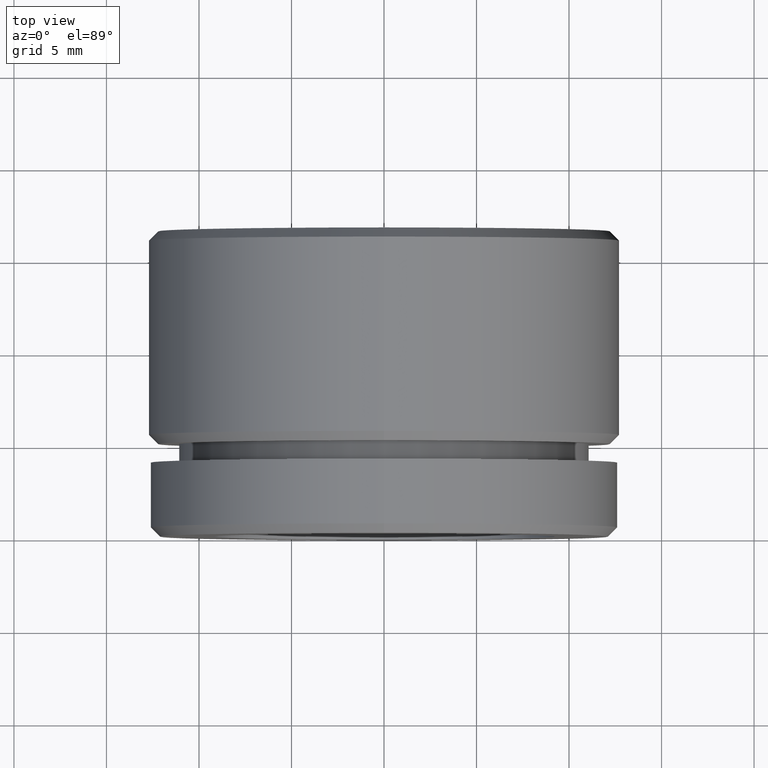
[diagram: clean part render]
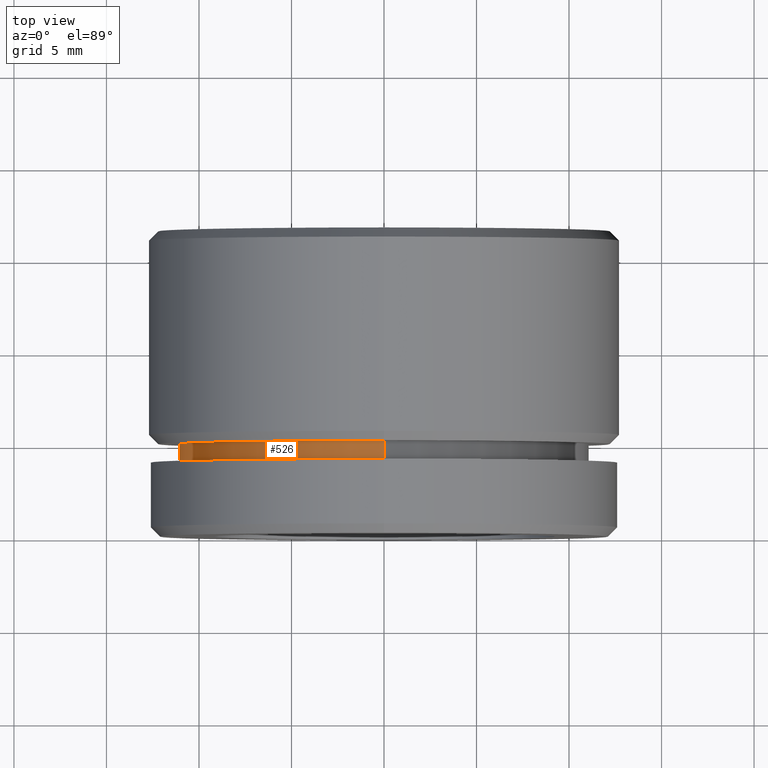
[diagram: same view with one face highlighted and labeled with its STEP entity id]
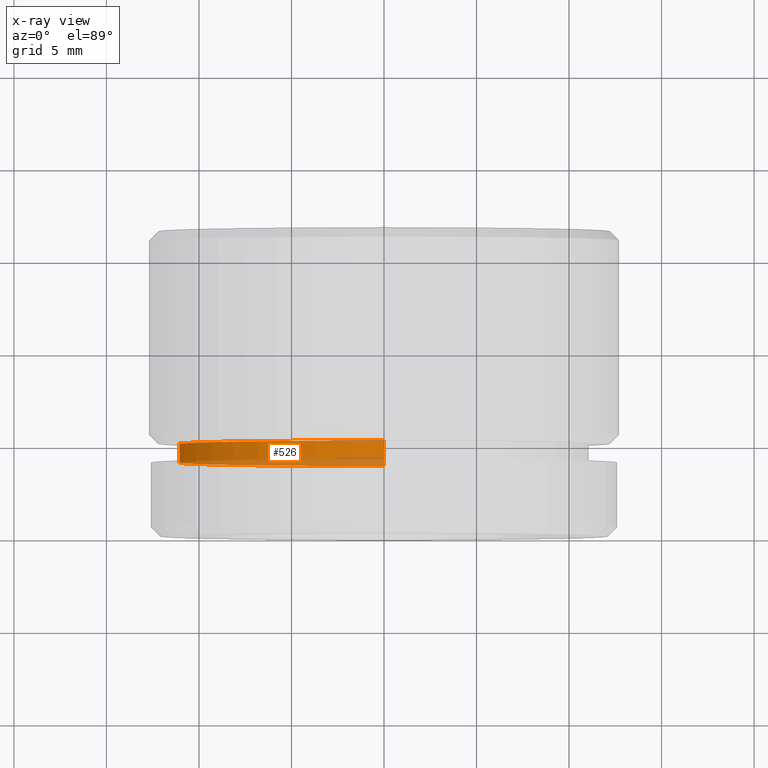
[diagram: x-ray of the same camera — body ghosted, the highlighted face saturated]
A machine part, top view. The second image highlights one B-rep face of the part: STEP entity #526.
The next image is the same camera in x-ray: the body ghosted, the highlighted face saturated — about 23% of this face is hidden behind the body in this view.
In plain terms, the highlighted cylindrical surface (partial cylindrical patch) has radius 11.1 mm, axis along (-0, -1, -0).
Its self-contained STEP definition (entity closure, byte-faithful):
#5 = VECTOR ( 'NONE', #164, 1000.000000000000000 ) ;
#58 = VERTEX_POINT ( 'NONE', #256 ) ;
#60 = VERTEX_POINT ( 'NONE', #504 ) ;
#68 = FACE_OUTER_BOUND ( 'NONE', #601, .T. ) ;
#78 = ORIENTED_EDGE ( 'NONE', *, *, #824, .T. ) ;
#138 = CARTESIAN_POINT ( 'NONE',  ( 0.0000000000000000000, 5.000000000000000000, -11.10000000000000000 ) ) ;
#140 = CARTESIAN_POINT ( 'NONE',  ( 1.359357947053562200E-015, 0.0000000000000000000, 11.10000000000000000 ) ) ;
#146 = LINE ( 'NONE', #140, #5 ) ;
#155 = CIRCLE ( 'NONE', #195, 11.10000000000000000 ) ;
#164 = DIRECTION ( 'NONE',  ( -0.0000000000000000000, -1.000000000000000000, -0.0000000000000000000 ) ) ;
#192 = DIRECTION ( 'NONE',  ( -0.0000000000000000000, -1.000000000000000000, -0.0000000000000000000 ) ) ;
#195 = AXIS2_PLACEMENT_3D ( 'NONE', #392, #192, #226 ) ;
#224 = CIRCLE ( 'NONE', #349, 11.10000000000000000 ) ;
#226 = DIRECTION ( 'NONE',  ( 0.0000000000000000000, 0.0000000000000000000, -1.000000000000000000 ) ) ;
#254 = DIRECTION ( 'NONE',  ( -0.0000000000000000000, -1.000000000000000000, -0.0000000000000000000 ) ) ;
#256 = CARTESIAN_POINT ( 'NONE',  ( 1.359357947053562200E-015, 4.000000000000000000, 11.10000000000000000 ) ) ;
#326 = EDGE_CURVE ( 'NONE', #453, #60, #596, .T. ) ;
#349 = AXIS2_PLACEMENT_3D ( 'NONE', #675, #254, #740 ) ;
#356 = DIRECTION ( 'NONE',  ( -0.0000000000000000000, -1.000000000000000000, -0.0000000000000000000 ) ) ;
#376 = CARTESIAN_POINT ( 'NONE',  ( 0.0000000000000000000, 0.0000000000000000000, -11.10000000000000000 ) ) ;
#392 = CARTESIAN_POINT ( 'NONE',  ( 0.0000000000000000000, 5.000000000000000000, 0.0000000000000000000 ) ) ;
#393 = ORIENTED_EDGE ( 'NONE', *, *, #807, .F. ) ;
#399 = AXIS2_PLACEMENT_3D ( 'NONE', #724, #432, #539 ) ;
#432 = DIRECTION ( 'NONE',  ( -0.0000000000000000000, -1.000000000000000000, -0.0000000000000000000 ) ) ;
#453 = VERTEX_POINT ( 'NONE', #138 ) ;
#473 = EDGE_CURVE ( 'NONE', #625, #58, #146, .T. ) ;
#489 = CYLINDRICAL_SURFACE ( 'NONE', #399, 11.10000000000000000 ) ;
#504 = CARTESIAN_POINT ( 'NONE',  ( 0.0000000000000000000, 4.000000000000000000, -11.10000000000000000 ) ) ;
#526 = ADVANCED_FACE ( 'NONE', ( #68 ), #489, .T. ) ;
#539 = DIRECTION ( 'NONE',  ( 0.0000000000000000000, 0.0000000000000000000, -1.000000000000000000 ) ) ;
#588 = VECTOR ( 'NONE', #356, 1000.000000000000000 ) ;
#596 = LINE ( 'NONE', #376, #588 ) ;
#597 = CARTESIAN_POINT ( 'NONE',  ( 1.359357947053562200E-015, 5.000000000000000000, 11.10000000000000000 ) ) ;
#601 = EDGE_LOOP ( 'NONE', ( #717, #78, #814, #393 ) ) ;
#625 = VERTEX_POINT ( 'NONE', #597 ) ;
#675 = CARTESIAN_POINT ( 'NONE',  ( 0.0000000000000000000, 4.000000000000000000, 0.0000000000000000000 ) ) ;
#717 = ORIENTED_EDGE ( 'NONE', *, *, #473, .F. ) ;
#724 = CARTESIAN_POINT ( 'NONE',  ( 0.0000000000000000000, 0.0000000000000000000, 0.0000000000000000000 ) ) ;
#740 = DIRECTION ( 'NONE',  ( 0.0000000000000000000, 0.0000000000000000000, -1.000000000000000000 ) ) ;
#807 = EDGE_CURVE ( 'NONE', #58, #60, #224, .T. ) ;
#814 = ORIENTED_EDGE ( 'NONE', *, *, #326, .T. ) ;
#824 = EDGE_CURVE ( 'NONE', #625, #453, #155, .T. ) ;